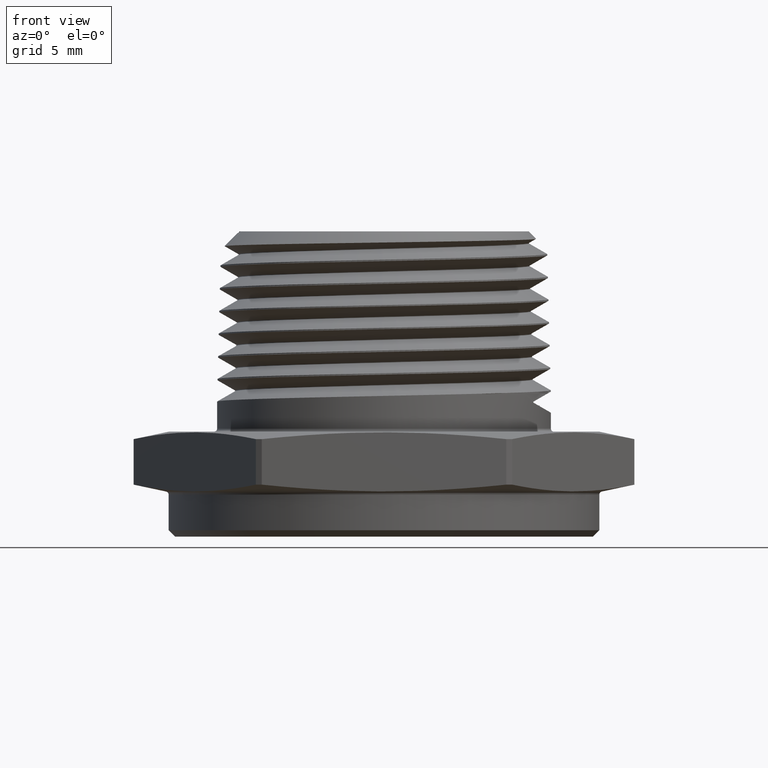
[diagram: clean part render]
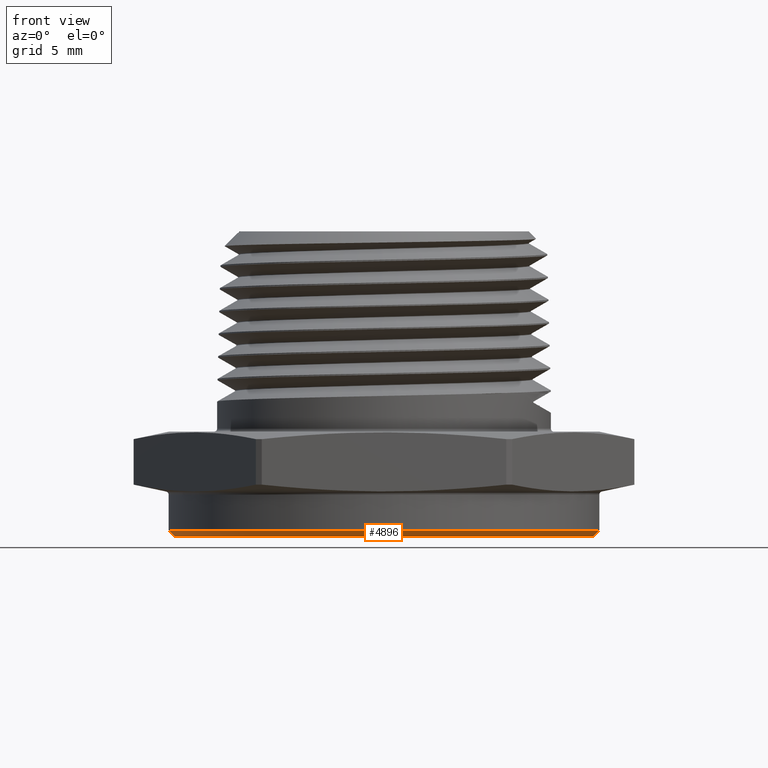
[diagram: same view with one face highlighted and labeled with its STEP entity id]
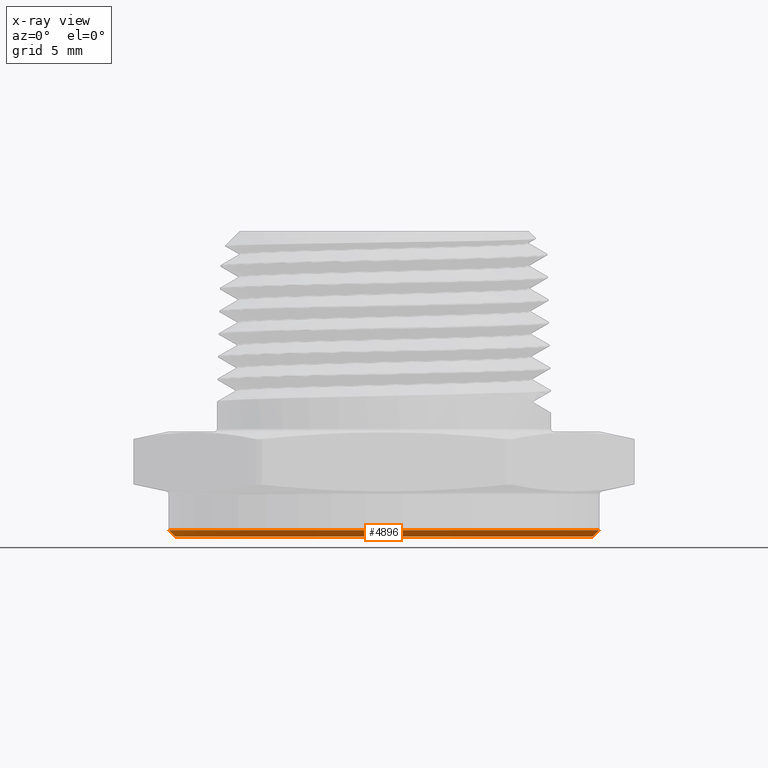
[diagram: x-ray of the same camera — body ghosted, the highlighted face saturated]
A machine part, front view. The second image highlights one B-rep face of the part: STEP entity #4896.
The next image is the same camera in x-ray: the body ghosted, the highlighted face saturated — about 0% of this face is hidden behind the body in this view.
In plain terms, the highlighted conical surface has half-angle 45 deg.
Its self-contained STEP definition (entity closure, byte-faithful):
#27 = EDGE_CURVE ( 'NONE', #4776, #4795, #921, .T. ) ;
#28 = EDGE_CURVE ( 'NONE', #4792, #4794, #922, .T. ) ;
#340 = CARTESIAN_POINT ( 'NONE',  ( 0.0000000000000000000, 0.0000000000000000000, -0.1199999999999995400 ) ) ;
#341 = DIRECTION ( 'NONE',  ( 0.0000000000000000000, 0.0000000000000000000, 1.000000000000000000 ) ) ;
#342 = DIRECTION ( 'NONE',  ( -1.000000000000000000, 0.0000000000000000000, 0.0000000000000000000 ) ) ;
#783 = CIRCLE ( 'NONE', #4605, 0.6774999999999999900 ) ;
#798 = FACE_OUTER_BOUND ( 'NONE', #5053, .T. ) ;
#802 = CONICAL_SURFACE ( 'NONE', #4610, 0.6574999999999997500, 0.7853981633974415100 ) ;
#921 = LINE ( 'NONE', #4384, #924 ) ;
#922 = LINE ( 'NONE', #4383, #926 ) ;
#924 = VECTOR ( 'NONE', #4395, 39.37007874015748100 ) ;
#926 = VECTOR ( 'NONE', #4457, 39.37007874015748100 ) ;
#1144 = CARTESIAN_POINT ( 'NONE',  ( -0.6574999999999997500, 8.174517384308581200E-017, -0.1400000000000000100 ) ) ;
#1156 = CARTESIAN_POINT ( 'NONE',  ( 0.6574999999999997500, 0.0000000000000000000, -0.1400000000000000100 ) ) ;
#1158 = CARTESIAN_POINT ( 'NONE',  ( 0.6774999999999999900, 0.0000000000000000000, -0.1199999999999995400 ) ) ;
#1159 = CARTESIAN_POINT ( 'NONE',  ( -0.6774999999999999900, 8.296982064223316200E-017, -0.1199999999999995400 ) ) ;
#1249 = DIRECTION ( 'NONE',  ( 1.000000000000000000, 0.0000000000000000000, 0.0000000000000000000 ) ) ;
#1251 = CARTESIAN_POINT ( 'NONE',  ( 0.0000000000000000000, 0.0000000000000000000, -0.1400000000000000100 ) ) ;
#1252 = DIRECTION ( 'NONE',  ( 0.0000000000000000000, 0.0000000000000000000, 1.000000000000000000 ) ) ;
#3017 = AXIS2_PLACEMENT_3D ( 'NONE', #3294, #3295, #3296 ) ;
#3294 = CARTESIAN_POINT ( 'NONE',  ( 0.0000000000000000000, 0.0000000000000000000, -0.1400000000000000100 ) ) ;
#3295 = DIRECTION ( 'NONE',  ( 0.0000000000000000000, 0.0000000000000000000, -1.000000000000000000 ) ) ;
#3296 = DIRECTION ( 'NONE',  ( -1.000000000000000000, 0.0000000000000000000, 0.0000000000000000000 ) ) ;
#4351 = EDGE_CURVE ( 'NONE', #4795, #4794, #783, .T. ) ;
#4383 = CARTESIAN_POINT ( 'NONE',  ( 0.6574999999999997500, 0.0000000000000000000, -0.1400000000000000100 ) ) ;
#4384 = CARTESIAN_POINT ( 'NONE',  ( -0.6574999999999997500, 8.052052704393843700E-017, -0.1400000000000000100 ) ) ;
#4395 = DIRECTION ( 'NONE',  ( -0.7071067811865426900, 8.659560562354872500E-017, 0.7071067811865523500 ) ) ;
#4457 = DIRECTION ( 'NONE',  ( 0.7071067811865426900, 0.0000000000000000000, 0.7071067811865523500 ) ) ;
#4605 = AXIS2_PLACEMENT_3D ( 'NONE', #340, #341, #342 ) ;
#4610 = AXIS2_PLACEMENT_3D ( 'NONE', #1251, #1252, #1249 ) ;
#4742 = CIRCLE ( 'NONE', #3017, 0.6574999999999997500 ) ;
#4776 = VERTEX_POINT ( 'NONE', #1144 ) ;
#4792 = VERTEX_POINT ( 'NONE', #1156 ) ;
#4794 = VERTEX_POINT ( 'NONE', #1158 ) ;
#4795 = VERTEX_POINT ( 'NONE', #1159 ) ;
#4896 = ADVANCED_FACE ( 'NONE', ( #798 ), #802, .T. ) ;
#5053 = EDGE_LOOP ( 'NONE', ( #5098, #5099, #5100, #5101 ) ) ;
#5098 = ORIENTED_EDGE ( 'NONE', *, *, #27, .F. ) ;
#5099 = ORIENTED_EDGE ( 'NONE', *, *, #5183, .F. ) ;
#5100 = ORIENTED_EDGE ( 'NONE', *, *, #28, .T. ) ;
#5101 = ORIENTED_EDGE ( 'NONE', *, *, #4351, .F. ) ;
#5183 = EDGE_CURVE ( 'NONE', #4792, #4776, #4742, .T. ) ;